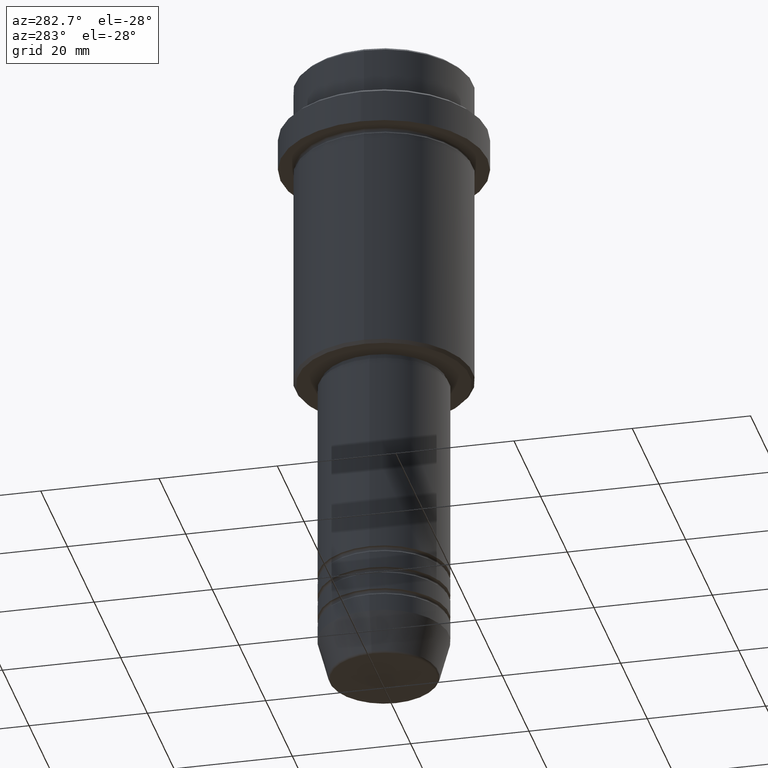
[diagram: clean part render]
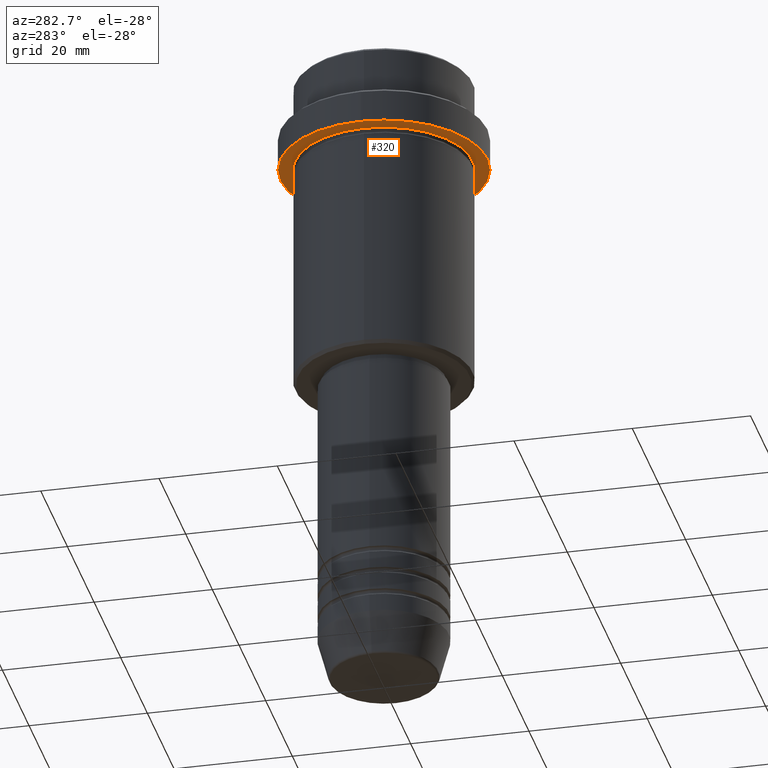
[diagram: same view with one face highlighted and labeled with its STEP entity id]
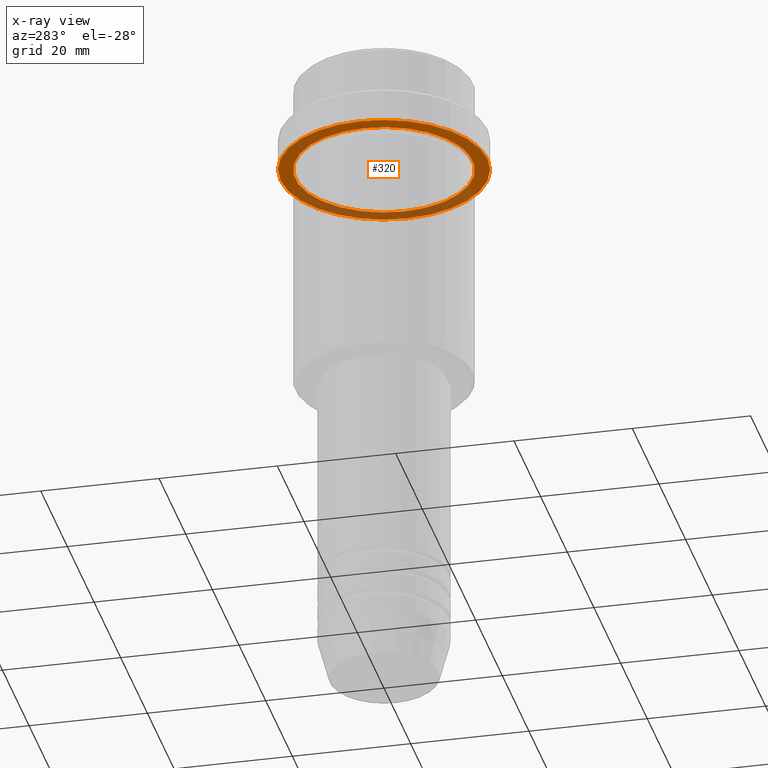
[diagram: x-ray of the same camera — body ghosted, the highlighted face saturated]
A machine part, auxiliary view. The second image highlights one B-rep face of the part: STEP entity #320.
The next image is the same camera in x-ray: the body ghosted, the highlighted face saturated — about 35% of this face is hidden behind the body in this view.
In plain terms, the highlighted planar face has unit normal (0, 0, -1).
Its self-contained STEP definition (entity closure, byte-faithful):
#76 = CIRCLE ( 'NONE', #361, 17.50000000000000000 ) ;
#120 = AXIS2_PLACEMENT_3D ( 'NONE', #121, #218, #347 ) ;
#121 = CARTESIAN_POINT ( 'NONE',  ( 0.000000000000000000, 17.50000000000000000, -15.00000000000000000 ) ) ;
#195 = DIRECTION ( 'NONE',  ( 1.000000000000000000, 0.000000000000000000, 0.000000000000000000 ) ) ;
#218 = DIRECTION ( 'NONE',  ( 0.000000000000000000, 0.000000000000000000, -1.000000000000000000 ) ) ;
#222 = CARTESIAN_POINT ( 'NONE',  ( 14.99999999999999645, 1.836970198721029194E-15, -15.00000000000000000 ) ) ;
#244 = EDGE_LOOP ( 'NONE', ( #882, #924 ) ) ;
#266 = FACE_OUTER_BOUND ( 'NONE', #244, .T. ) ;
#271 = CARTESIAN_POINT ( 'NONE',  ( 17.50000000000000000, 0.000000000000000000, -15.00000000000000178 ) ) ;
#283 = AXIS2_PLACEMENT_3D ( 'NONE', #840, #1276, #607 ) ;
#288 = CARTESIAN_POINT ( 'NONE',  ( 0.000000000000000000, 0.000000000000000000, -15.00000000000000178 ) ) ;
#320 = ADVANCED_FACE ( 'NONE', ( #353, #266 ), #1303, .T. ) ;
#347 = DIRECTION ( 'NONE',  ( -1.000000000000000000, 0.000000000000000000, -0.000000000000000000 ) ) ;
#353 = FACE_BOUND ( 'NONE', #680, .T. ) ;
#361 = AXIS2_PLACEMENT_3D ( 'NONE', #849, #438, #195 ) ;
#366 = CARTESIAN_POINT ( 'NONE',  ( 0.000000000000000000, 0.000000000000000000, -15.00000000000000000 ) ) ;
#438 = DIRECTION ( 'NONE',  ( -0.000000000000000000, -0.000000000000000000, 1.000000000000000000 ) ) ;
#452 = CIRCLE ( 'NONE', #475, 14.99999999999999645 ) ;
#475 = AXIS2_PLACEMENT_3D ( 'NONE', #366, #794, #1132 ) ;
#477 = VERTEX_POINT ( 'NONE', #946 ) ;
#527 = EDGE_CURVE ( 'NONE', #477, #1021, #787, .T. ) ;
#547 = EDGE_CURVE ( 'NONE', #957, #687, #990, .T. ) ;
#607 = DIRECTION ( 'NONE',  ( -1.000000000000000000, 0.000000000000000000, 0.000000000000000000 ) ) ;
#680 = EDGE_LOOP ( 'NONE', ( #1206, #1266 ) ) ;
#687 = VERTEX_POINT ( 'NONE', #1207 ) ;
#787 = CIRCLE ( 'NONE', #283, 14.99999999999999645 ) ;
#794 = DIRECTION ( 'NONE',  ( -0.000000000000000000, -0.000000000000000000, 1.000000000000000000 ) ) ;
#800 = EDGE_CURVE ( 'NONE', #1021, #477, #452, .T. ) ;
#840 = CARTESIAN_POINT ( 'NONE',  ( 0.000000000000000000, 0.000000000000000000, -15.00000000000000000 ) ) ;
#849 = CARTESIAN_POINT ( 'NONE',  ( 0.000000000000000000, 0.000000000000000000, -15.00000000000000178 ) ) ;
#882 = ORIENTED_EDGE ( 'NONE', *, *, #547, .F. ) ;
#924 = ORIENTED_EDGE ( 'NONE', *, *, #1332, .F. ) ;
#946 = CARTESIAN_POINT ( 'NONE',  ( -14.99999999999999645, 0.000000000000000000, -15.00000000000000000 ) ) ;
#957 = VERTEX_POINT ( 'NONE', #271 ) ;
#990 = CIRCLE ( 'NONE', #1259, 17.50000000000000000 ) ;
#1021 = VERTEX_POINT ( 'NONE', #222 ) ;
#1132 = DIRECTION ( 'NONE',  ( -1.000000000000000000, 0.000000000000000000, 0.000000000000000000 ) ) ;
#1154 = DIRECTION ( 'NONE',  ( -0.000000000000000000, -0.000000000000000000, 1.000000000000000000 ) ) ;
#1206 = ORIENTED_EDGE ( 'NONE', *, *, #527, .T. ) ;
#1207 = CARTESIAN_POINT ( 'NONE',  ( -17.50000000000000000, 2.143131898507868248E-15, -15.00000000000000178 ) ) ;
#1259 = AXIS2_PLACEMENT_3D ( 'NONE', #288, #1154, #1398 ) ;
#1266 = ORIENTED_EDGE ( 'NONE', *, *, #800, .T. ) ;
#1276 = DIRECTION ( 'NONE',  ( -0.000000000000000000, -0.000000000000000000, 1.000000000000000000 ) ) ;
#1303 = PLANE ( 'NONE',  #120 ) ;
#1332 = EDGE_CURVE ( 'NONE', #687, #957, #76, .T. ) ;
#1398 = DIRECTION ( 'NONE',  ( 1.000000000000000000, 0.000000000000000000, 0.000000000000000000 ) ) ;